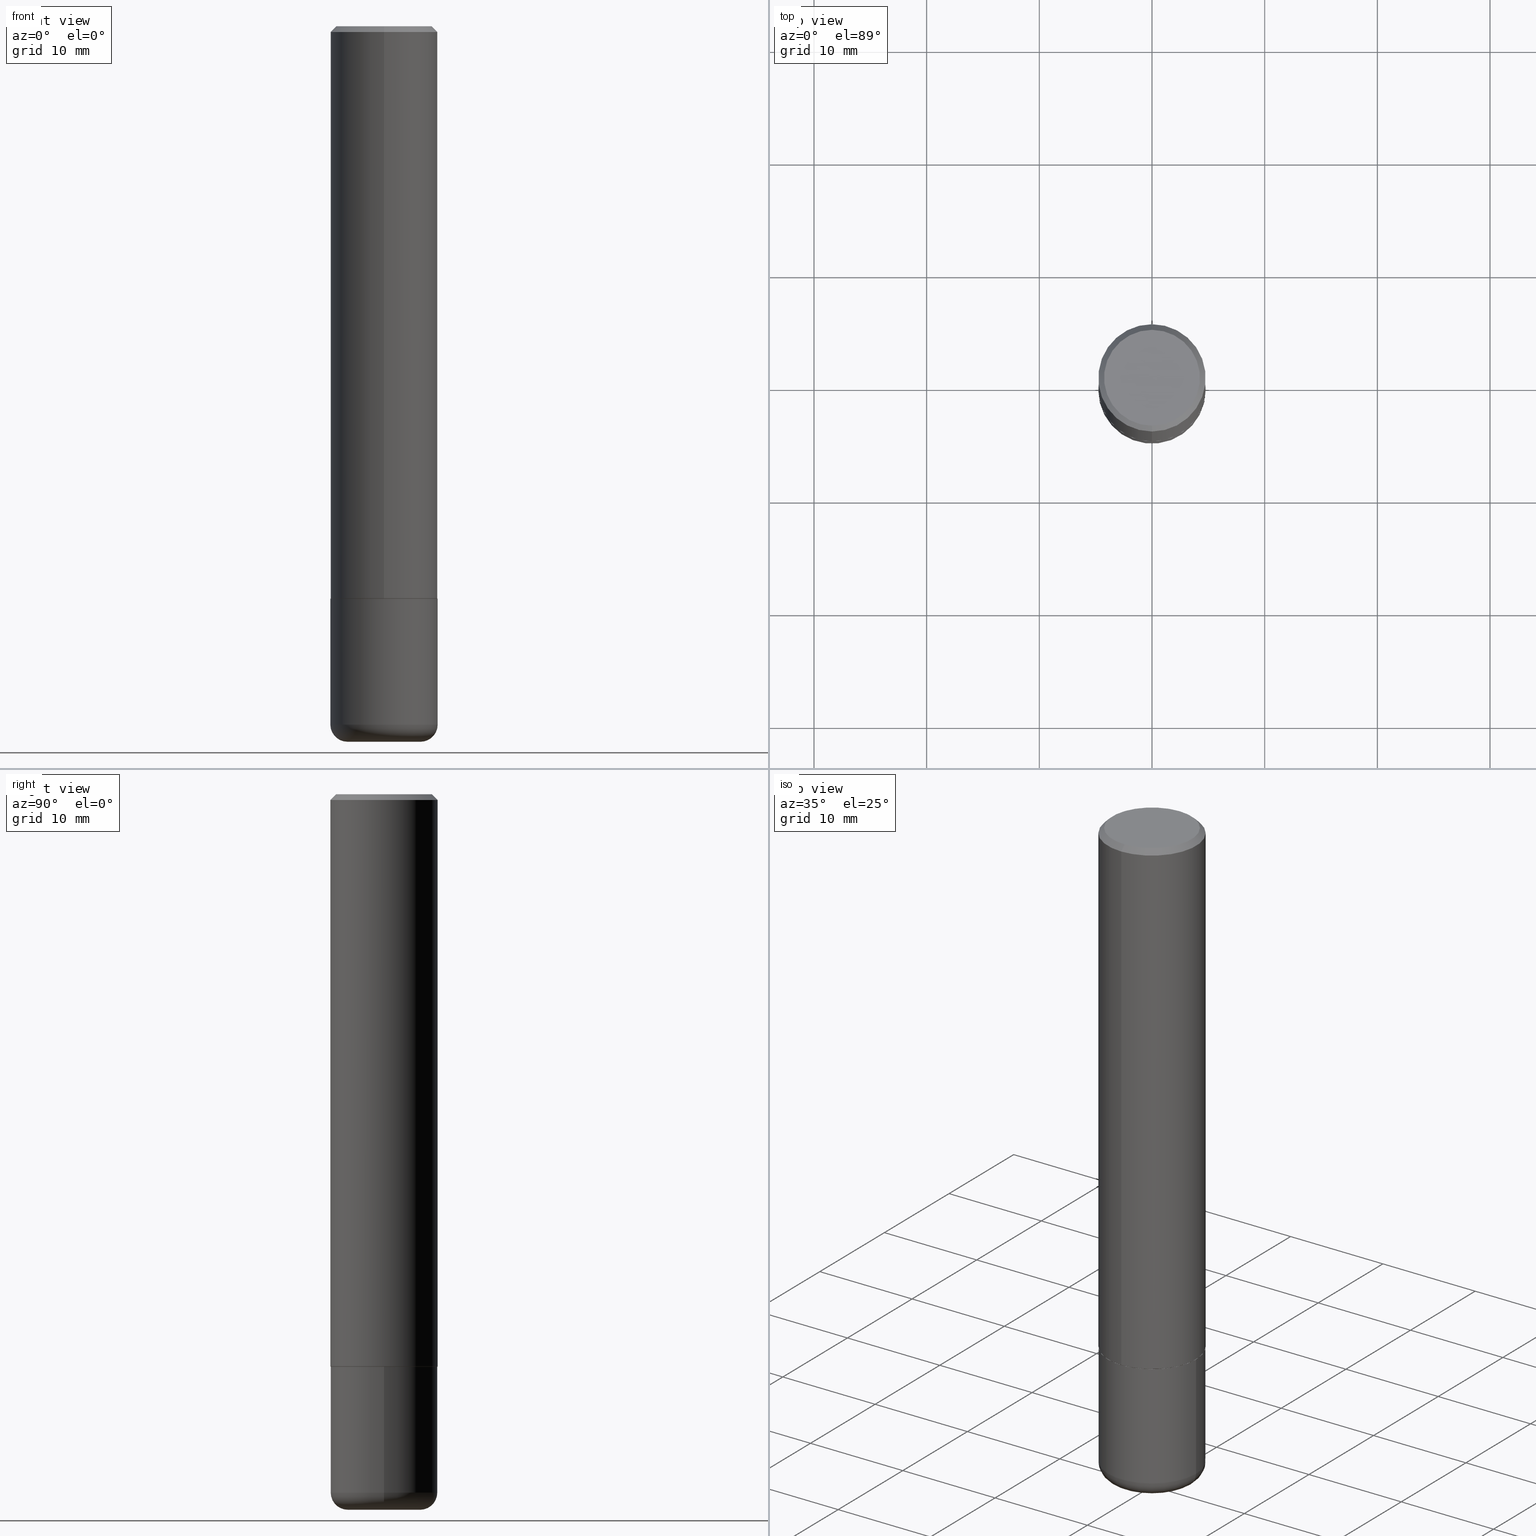
[diagram: canonical four-view strip — front | top / right | iso, engineering-drawing reading convention]
A machine part, canonical four-view strip (front | top / right | iso — engineering-drawing reading convention). The complete STEP part file that produces these views, byte-faithful:
ISO-10303-21;
HEADER;
FILE_DESCRIPTION (( 'STEP AP203' ),
    '1' );
FILE_NAME ('38817.STEP',
    '2024-03-03T14:39:01',
    ( '' ),
    ( '' ),
    'SwSTEP 2.0',
    'SolidWorks 2023',
    '' );
FILE_SCHEMA (( 'CONFIG_CONTROL_DESIGN' ));
ENDSEC;

DATA;
#1 = CIRCLE ( 'NONE', #182, 0.1875000000000000278 ) ;
#2 = ORIENTED_EDGE ( 'NONE', *, *, #365, .F. ) ;
#3 = FACE_OUTER_BOUND ( 'NONE', #306, .T. ) ;
#4 = EDGE_CURVE ( 'NONE', #218, #31, #223, .T. ) ;
#5 = EDGE_LOOP ( 'NONE', ( #361, #397, #313, #228 ) ) ;
#6 = FACE_OUTER_BOUND ( 'NONE', #5, .T. ) ;
#7 = FACE_OUTER_BOUND ( 'NONE', #58, .T. ) ;
#8 = COORDINATED_UNIVERSAL_TIME_OFFSET ( 5, 0, .BEHIND. ) ;
#9 = VECTOR ( 'NONE', #26, 39.37007874015748143 ) ;
#10 = CONICAL_SURFACE ( 'NONE', #213, 0.1875000000000000555, 0.7853981633974473908 ) ;
#11 = FACE_OUTER_BOUND ( 'NONE', #252, .T. ) ;
#12 = ORIENTED_EDGE ( 'NONE', *, *, #51, .F. ) ;
#13 = CARTESIAN_POINT ( 'NONE',  ( 0.1275000000000000022, -9.409542208182273423E-15, -2.440000000000000391 ) ) ;
#14 = ORIENTED_EDGE ( 'NONE', *, *, #365, .T. ) ;
#15 = EDGE_CURVE ( 'NONE', #218, #46, #188, .T. ) ;
#16 = CARTESIAN_POINT ( 'NONE',  ( 0.1875000000000000555, -1.309305502066175205E-15, 9.142831454617382414E-30 ) ) ;
#17 = DIRECTION ( 'NONE',  ( -6.982962677686265922E-15, -1.000000000000000000, 3.491920538655792507E-15 ) ) ;
#18 = DIRECTION ( 'NONE',  ( 1.000000000000000000, -6.982962677686260400E-15, 0.000000000000000000 ) ) ;
#19 = DIRECTION ( 'NONE',  ( -2.445468806185136597E-29, 3.491481338843145583E-15, 1.000000000000000000 ) ) ;
#20 = CC_DESIGN_PERSON_AND_ORGANIZATION_ASSIGNMENT ( #234, #272, ( #385 ) ) ;
#21 = ORIENTED_EDGE ( 'NONE', *, *, #149, .F. ) ;
#22 = CARTESIAN_POINT ( 'NONE',  ( 5.966943887091733341E-29, -8.519214466777275048E-15, -2.440000000000000391 ) ) ;
#23 = PRODUCT ( '38817', '38817', '', ( #351 ) ) ;
#24 = LOCAL_TIME ( 9, 39, 1.000000000000000000, #143 ) ;
#25 = CARTESIAN_POINT ( 'NONE',  ( 4.890324229190321149E-29, -6.983841077311584226E-15, -1.999999999999999778 ) ) ;
#26 = DIRECTION ( 'NONE',  ( -2.445468806185136877E-29, 3.491481338843145188E-15, 1.000000000000000000 ) ) ;
#27 = VERTEX_POINT ( 'NONE', #297 ) ;
#28 = CONICAL_SURFACE ( 'NONE', #279, 0.1864999999999999714, 0.7853981633977044075 ) ;
#29 = VERTEX_POINT ( 'NONE', #230 ) ;
#30 = DIRECTION ( 'NONE',  ( -6.982962677686265922E-15, -1.000000000000000000, 3.483106191921934371E-15 ) ) ;
#31 = VERTEX_POINT ( 'NONE', #169 ) ;
#32 = ADVANCED_FACE ( 'NONE', ( #116 ), #201, .T. ) ;
#33 = AXIS2_PLACEMENT_3D ( 'NONE', #13, #106, #124 ) ;
#34 = DIRECTION ( 'NONE',  ( -2.445162114595160294E-29, 3.491920538655792902E-15, 1.000000000000000000 ) ) ;
#35 =( NAMED_UNIT ( * ) SI_UNIT ( $, .STERADIAN. ) SOLID_ANGLE_UNIT ( ) );
#36 = EDGE_LOOP ( 'NONE', ( #312, #87 ) ) ;
#37 = ADVANCED_FACE ( 'NONE', ( #237 ), #103, .T. ) ;
#38 = ORIENTED_EDGE ( 'NONE', *, *, #340, .T. ) ;
#39 = AXIS2_PLACEMENT_3D ( 'NONE', #227, #128, #74 ) ;
#40 = DIRECTION ( 'NONE',  ( 6.982962677686265922E-15, 1.000000000000000000, -3.483106191921934371E-15 ) ) ;
#41 = CARTESIAN_POINT ( 'NONE',  ( 6.113672015462842613E-29, -8.728703347107866520E-15, -2.500000000000000444 ) ) ;
#42 = CARTESIAN_POINT ( 'NONE',  ( -1.367266251544870937E-29, -1.944183273402655128E-14, -2.500000000000000000 ) ) ;
#43 = VERTEX_POINT ( 'NONE', #175 ) ;
#44 = DIRECTION ( 'NONE',  ( 1.000000000000000000, -6.982962677686263555E-15, 4.883557194083111780E-29 ) ) ;
#45 = DIRECTION ( 'NONE',  ( -2.445468806185136597E-29, 3.491481338843145583E-15, 1.000000000000000000 ) ) ;
#46 = VERTEX_POINT ( 'NONE', #108 ) ;
#47 = LINE ( 'NONE', #16, #9 ) ;
#48 = CARTESIAN_POINT ( 'NONE',  ( 4.887879067075725967E-29, -6.980349156772927879E-15, -1.998999999999999888 ) ) ;
#49 = EDGE_CURVE ( 'NONE', #31, #190, #243, .T. ) ;
#50 = DIRECTION ( 'NONE',  ( 6.982962677686265922E-15, 1.000000000000000000, -3.483106191921934371E-15 ) ) ;
#51 = EDGE_CURVE ( 'NONE', #221, #43, #342, .T. ) ;
#52 = DIRECTION ( 'NONE',  ( -2.445468806185136597E-29, 3.491481338843145583E-15, 1.000000000000000000 ) ) ;
#53 = AXIS2_PLACEMENT_3D ( 'NONE', #72, #101, #133 ) ;
#54 = AXIS2_PLACEMENT_3D ( 'NONE', #302, #270, #241 ) ;
#55 = CARTESIAN_POINT ( 'NONE',  ( -1.286343374582161774E-15, -0.1875000000000001110, -0.01999999999999938979 ) ) ;
#56 = AXIS2_PLACEMENT_3D ( 'NONE', #374, #369, #197 ) ;
#57 = ADVANCED_FACE ( 'NONE', ( #137 ), #266, .T. ) ;
#58 = EDGE_LOOP ( 'NONE', ( #282, #271, #262, #2 ) ) ;
#59 = CIRCLE ( 'NONE', #222, 0.1875000000000000555 ) ;
#60 = ORIENTED_EDGE ( 'NONE', *, *, #408, .T. ) ;
#61 = ORIENTED_EDGE ( 'NONE', *, *, #395, .T. ) ;
#62 = LOCAL_TIME ( 9, 39, 1.000000000000000000, #8 ) ;
#63 = CARTESIAN_POINT ( 'NONE',  ( 4.890324229190321149E-29, -6.983841077311584226E-15, -1.999999999999999778 ) ) ;
#64 = CLOSED_SHELL ( 'NONE', ( #162, #256, #318, #37, #32, #324, #211, #85 ) ) ;
#65 = VERTEX_POINT ( 'NONE', #77 ) ;
#66 = APPLICATION_PROTOCOL_DEFINITION ( 'international standard', 'config_control_design', 1994, #142 ) ;
#67 = ORIENTED_EDGE ( 'NONE', *, *, #305, .F. ) ;
#68 = CARTESIAN_POINT ( 'NONE',  ( 4.890937612370273194E-29, -6.982962677686291165E-15, -2.000000000000000000 ) ) ;
#69 = EDGE_CURVE ( 'NONE', #31, #29, #206, .T. ) ;
#70 =( GEOMETRIC_REPRESENTATION_CONTEXT ( 3 ) GLOBAL_UNCERTAINTY_ASSIGNED_CONTEXT ( ( #389 ) ) GLOBAL_UNIT_ASSIGNED_CONTEXT ( ( #319, #100, #35 ) ) REPRESENTATION_CONTEXT ( 'NONE', 'WORKASPACE' ) );
#71 = FACE_OUTER_BOUND ( 'NONE', #240, .T. ) ;
#72 = CARTESIAN_POINT ( 'NONE',  ( 6.113672015462842613E-29, -8.728703347107866520E-15, -2.500000000000000444 ) ) ;
#73 = DIRECTION ( 'NONE',  ( 1.000000000000000000, -6.982962677686263555E-15, 4.883557194083111780E-29 ) ) ;
#74 = DIRECTION ( 'NONE',  ( 1.000000000000000000, -6.982962677686266711E-15, 0.000000000000000000 ) ) ;
#75 = ORIENTED_EDGE ( 'NONE', *, *, #202, .F. ) ;
#76 = EDGE_CURVE ( 'NONE', #46, #218, #134, .T. ) ;
#77 = CARTESIAN_POINT ( 'NONE',  ( 0.1875000000000000278, -8.292268179752466962E-15, -2.000000000000000000 ) ) ;
#78 = AXIS2_PLACEMENT_3D ( 'NONE', #63, #165, #159 ) ;
#79 = CARTESIAN_POINT ( 'NONE',  ( 1.328714915871436845E-15, 0.1864999999999929770, -2.000000000000000444 ) ) ;
#80 = AXIS2_PLACEMENT_3D ( 'NONE', #125, #102, #73 ) ;
#81 = DIRECTION ( 'NONE',  ( -4.937700262165812586E-15, -0.7071067811867262076, 0.7071067811863689379 ) ) ;
#82 = SHAPE_DEFINITION_REPRESENTATION ( #370, #341 ) ;
#83 = VERTEX_POINT ( 'NONE', #79 ) ;
#84 = AXIS2_PLACEMENT_3D ( 'NONE', #184, #314, #30 ) ;
#85 = ADVANCED_FACE ( 'NONE', ( #416 ), #293, .F. ) ;
#86 = MANIFOLD_SOLID_BREP ( 'Body-Move/Copy2[2]', #64 ) ;
#87 = ORIENTED_EDGE ( 'NONE', *, *, #15, .F. ) ;
#88 = APPROVAL_PERSON_ORGANIZATION ( #401, #177, #350 ) ;
#89 = ORIENTED_EDGE ( 'NONE', *, *, #76, .T. ) ;
#90 = LINE ( 'NONE', #168, #394 ) ;
#91 = PERSON ( 'UNSPECIFIED', 'UNSPECIFIED', 'UNSPECIFIED', ('UNSPECIFIED'), ('UNSPECIFIED'), ('UNSPECIFIED') ) ;
#92 = AXIS2_PLACEMENT_3D ( 'NONE', #224, #286, #403 ) ;
#93 = CALENDAR_DATE ( 2024, 3, 3 ) ;
#94 = FACE_OUTER_BOUND ( 'NONE', #387, .T. ) ;
#95 = EDGE_LOOP ( 'NONE', ( #399, #400 ) ) ;
#96 = DIRECTION ( 'NONE',  ( 2.438088387897960049E-29, -3.491481338843145188E-15, -1.000000000000000000 ) ) ;
#98 = ORIENTED_EDGE ( 'NONE', *, *, #283, .F. ) ;
#97 = CC_DESIGN_DATE_AND_TIME_ASSIGNMENT ( #296, #269, ( #385 ) ) ;
#99 = EDGE_CURVE ( 'NONE', #43, #144, #245, .T. ) ;
#100 =( NAMED_UNIT ( * ) PLANE_ANGLE_UNIT ( ) SI_UNIT ( $, .RADIAN. ) );
#101 = DIRECTION ( 'NONE',  ( -2.445468806185136597E-29, 3.491481338843145583E-15, 1.000000000000000000 ) ) ;
#102 = DIRECTION ( 'NONE',  ( -2.445468806185136597E-29, 3.491481338843145583E-15, 1.000000000000000000 ) ) ;
#103 = CONICAL_SURFACE ( 'NONE', #336, 0.1875000000000000555, 0.7853981633974473908 ) ;
#104 = EDGE_CURVE ( 'NONE', #27, #83, #343, .T. ) ;
#105 = LOCAL_TIME ( 9, 39, 1.000000000000000000, #285 ) ;
#106 = DIRECTION ( 'NONE',  ( -6.982962677686266711E-15, -1.000000000000000000, 3.491481338843145583E-15 ) ) ;
#107 = AXIS2_PLACEMENT_3D ( 'NONE', #304, #117, #119 ) ;
#108 = CARTESIAN_POINT ( 'NONE',  ( 0.1275000000000000022, -9.619031088512866473E-15, -2.500000000000000444 ) ) ;
#109 = CARTESIAN_POINT ( 'NONE',  ( -0.1275000000000000022, -7.613272478683147690E-15, -2.440000000000000391 ) ) ;
#110 = CALENDAR_DATE ( 2024, 3, 3 ) ;
#111 = EDGE_CURVE ( 'NONE', #380, #157, #310, .T. ) ;
#112 = EDGE_CURVE ( 'NONE', #380, #144, #171, .T. ) ;
#113 = LINE ( 'NONE', #368, #121 ) ;
#114 = ORIENTED_EDGE ( 'NONE', *, *, #248, .T. ) ;
#115 = FACE_OUTER_BOUND ( 'NONE', #323, .T. ) ;
#116 = FACE_OUTER_BOUND ( 'NONE', #194, .T. ) ;
#117 = DIRECTION ( 'NONE',  ( 2.445162114595160014E-29, -3.491920538655792902E-15, -1.000000000000000000 ) ) ;
#118 = LOCAL_TIME ( 9, 39, 1.000000000000000000, #127 ) ;
#119 = DIRECTION ( 'NONE',  ( 6.982962677686265922E-15, 1.000000000000000000, -3.491920538655792902E-15 ) ) ;
#120 = ORIENTED_EDGE ( 'NONE', *, *, #112, .F. ) ;
#121 = VECTOR ( 'NONE', #81, 39.37007874015748143 ) ;
#122 = FACE_OUTER_BOUND ( 'NONE', #183, .T. ) ;
#123 = CARTESIAN_POINT ( 'NONE',  ( 0.000000000000000000, 0.000000000000000000, 0.000000000000000000 ) ) ;
#124 = DIRECTION ( 'NONE',  ( 1.000000000000000000, -6.982962677686271444E-15, 0.000000000000000000 ) ) ;
#125 = CARTESIAN_POINT ( 'NONE',  ( 5.966943887091733341E-29, -8.519214466777275048E-15, -2.440000000000000391 ) ) ;
#126 = AXIS2_PLACEMENT_3D ( 'NONE', #354, #332, #200 ) ;
#127 = COORDINATED_UNIVERSAL_TIME_OFFSET ( 5, 0, .BEHIND. ) ;
#128 = DIRECTION ( 'NONE',  ( -2.445468806185136597E-29, 3.491481338843145583E-15, 1.000000000000000000 ) ) ;
#129 = APPROVAL_DATE_TIME ( #199, #392 ) ;
#130 = VERTEX_POINT ( 'NONE', #417 ) ;
#131 = APPROVAL_STATUS ( 'not_yet_approved' ) ;
#132 = CARTESIAN_POINT ( 'NONE',  ( 4.890324229190331589E-31, -6.983841077311600052E-17, -0.02000000000000004205 ) ) ;
#133 = DIRECTION ( 'NONE',  ( 1.000000000000000000, -6.982962677686267499E-15, 0.000000000000000000 ) ) ;
#134 = CIRCLE ( 'NONE', #376, 0.1275000000000000022 ) ;
#135 = DATE_AND_TIME ( #236, #24 ) ;
#136 = CIRCLE ( 'NONE', #208, 0.1875000000000002776 ) ;
#137 = FACE_OUTER_BOUND ( 'NONE', #339, .T. ) ;
#138 = DIRECTION ( 'NONE',  ( -4.851104656540959542E-15, -0.7071067811865493491, -0.7071067811865457964 ) ) ;
#139 = COORDINATED_UNIVERSAL_TIME_OFFSET ( 5, 0, .BEHIND. ) ;
#140 = CARTESIAN_POINT ( 'NONE',  ( -5.236590585173793708E-46, 7.478341868521650963E-32, 2.141612841912039052E-17 ) ) ;
#141 = DIRECTION ( 'NONE',  ( 1.000000000000000000, -6.982962677686267499E-15, 0.000000000000000000 ) ) ;
#142 = APPLICATION_CONTEXT ( 'configuration controlled 3d designs of mechanical parts and assemblies' ) ;
#143 = COORDINATED_UNIVERSAL_TIME_OFFSET ( 5, 0, .BEHIND. ) ;
#144 = VERTEX_POINT ( 'NONE', #210 ) ;
#145 = VECTOR ( 'NONE', #353, 39.37007874015748143 ) ;
#146 = CC_DESIGN_SECURITY_CLASSIFICATION ( #385, ( #164 ) ) ;
#147 = APPROVAL_ROLE ( '' ) ;
#148 = ORIENTED_EDGE ( 'NONE', *, *, #104, .F. ) ;
#149 = EDGE_CURVE ( 'NONE', #83, #27, #181, .T. ) ;
#150 = CARTESIAN_POINT ( 'NONE',  ( 1.239475875289312696E-15, 0.1675000000000000100, -5.634805618057250307E-16 ) ) ;
#151 = CC_DESIGN_PERSON_AND_ORGANIZATION_ASSIGNMENT ( #205, #170, ( #164 ) ) ;
#152 = ORIENTED_EDGE ( 'NONE', *, *, #111, .F. ) ;
#153 = ORIENTED_EDGE ( 'NONE', *, *, #395, .F. ) ;
#154 = AXIS2_PLACEMENT_3D ( 'NONE', #410, #412, #366 ) ;
#155 = AXIS2_PLACEMENT_3D ( 'NONE', #174, #338, #398 ) ;
#156 = AXIS2_PLACEMENT_3D ( 'NONE', #274, #364, #334 ) ;
#157 = VERTEX_POINT ( 'NONE', #150 ) ;
#158 = DIMENSIONAL_EXPONENTS ( 1.000000000000000000, 0.000000000000000000, 0.000000000000000000, 0.000000000000000000, 0.000000000000000000, 0.000000000000000000, 0.000000000000000000 ) ;
#159 = DIRECTION ( 'NONE',  ( -6.982962677686265922E-15, -1.000000000000000000, 2.929595703661408850E-15 ) ) ;
#160 = PERSON_AND_ORGANIZATION ( #91, #275 ) ;
#161 = DIRECTION ( 'NONE',  ( 2.445162114595160575E-29, -3.491920538655792507E-15, -1.000000000000000000 ) ) ;
#162 = ADVANCED_FACE ( 'NONE', ( #3 ), #28, .T. ) ;
#163 = DIRECTION ( 'NONE',  ( 0.000000000000000000, 0.000000000000000000, 1.000000000000000000 ) ) ;
#164 = PRODUCT_DEFINITION_FORMATION_WITH_SPECIFIED_SOURCE ( 'ANY', '', #23, .NOT_KNOWN. ) ;
#165 = DIRECTION ( 'NONE',  ( -2.445162114595160575E-29, 3.491920538655792507E-15, 1.000000000000000000 ) ) ;
#166 = DIRECTION ( 'NONE',  ( 1.000000000000000000, -6.982962677686266711E-15, 0.000000000000000000 ) ) ;
#167 = ORIENTED_EDGE ( 'NONE', *, *, #49, .T. ) ;
#168 = CARTESIAN_POINT ( 'NONE',  ( 1.309305502066175797E-15, 0.1874999999999999722, -0.02000000000000069431 ) ) ;
#169 = CARTESIAN_POINT ( 'NONE',  ( -0.1875000000000001388, -7.186946837227087200E-15, -2.440000000000000391 ) ) ;
#170 = PERSON_AND_ORGANIZATION_ROLE ( 'design_supplier' ) ;
#171 = LINE ( 'NONE', #55, #371 ) ;
#172 = TOROIDAL_SURFACE ( 'NONE', #80, 0.1275000000000000022, 0.06000000000000024758 ) ;
#173 = CARTESIAN_POINT ( 'NONE',  ( -0.1875000000000000555, 1.332267629550188243E-15, -9.223003294227950793E-30 ) ) ;
#174 = CARTESIAN_POINT ( 'NONE',  ( 4.890324229190321710E-29, -6.983841077311585015E-15, -2.000000000000000000 ) ) ;
#175 = CARTESIAN_POINT ( 'NONE',  ( -1.309305502066128268E-15, -0.1875000000000072442, -1.998999999999999444 ) ) ;
#176 = DIRECTION ( 'NONE',  ( -2.445468806185136597E-29, 3.491481338843145583E-15, 1.000000000000000000 ) ) ;
#177 = APPROVAL ( #131, 'UNSPECIFIED' ) ;
#178 = EDGE_CURVE ( 'NONE', #130, #144, #317, .T. ) ;
#179 = DIRECTION ( 'NONE',  ( -6.982962677686265922E-15, -1.000000000000000000, 3.491920538655792902E-15 ) ) ;
#180 = CC_DESIGN_APPROVAL ( #277, ( #385 ) ) ;
#181 = CIRCLE ( 'NONE', #362, 0.1864999999999999714 ) ;
#182 = AXIS2_PLACEMENT_3D ( 'NONE', #68, #45, #166 ) ;
#183 = EDGE_LOOP ( 'NONE', ( #89, #284, #75, #98 ) ) ;
#184 = CARTESIAN_POINT ( 'NONE',  ( 4.890324229190331589E-31, -6.983841077311600052E-17, -0.02000000000000004205 ) ) ;
#185 = ORIENTED_EDGE ( 'NONE', *, *, #247, .F. ) ;
#186 = CARTESIAN_POINT ( 'NONE',  ( 0.000000000000000000, 0.000000000000000000, 0.000000000000000000 ) ) ;
#187 = ORIENTED_EDGE ( 'NONE', *, *, #104, .T. ) ;
#188 = CIRCLE ( 'NONE', #53, 0.1275000000000000022 ) ;
#189 = CARTESIAN_POINT ( 'NONE',  ( -0.1275000000000000022, -7.504854098120412392E-15, -2.500000000000000444 ) ) ;
#190 = VERTEX_POINT ( 'NONE', #198 ) ;
#191 = ADVANCED_FACE ( 'NONE', ( #6 ), #172, .T. ) ;
#192 = CALENDAR_DATE ( 2024, 3, 3 ) ;
#193 = DIRECTION ( 'NONE',  ( -2.445162114595160294E-29, 3.491920538655792902E-15, 1.000000000000000000 ) ) ;
#194 = EDGE_LOOP ( 'NONE', ( #185, #346, #249, #246 ) ) ;
#195 = ADVANCED_FACE ( 'NONE', ( #122 ), #298, .T. ) ;
#196 = LENGTH_MEASURE_WITH_UNIT ( LENGTH_MEASURE( 0.02539999999999999897 ), #215 );
#197 = DIRECTION ( 'NONE',  ( 1.000000000000000000, -6.982962677686260400E-15, 0.000000000000000000 ) ) ;
#198 = CARTESIAN_POINT ( 'NONE',  ( 0.1875000000000001388, -9.828519968843450056E-15, -2.440000000000000391 ) ) ;
#199 = DATE_AND_TIME ( #93, #105 ) ;
#200 = DIRECTION ( 'NONE',  ( -6.982962677686265922E-15, -1.000000000000000000, 2.929595703661408850E-15 ) ) ;
#201 = CYLINDRICAL_SURFACE ( 'NONE', #407, 0.1875000000000001943 ) ;
#202 = EDGE_CURVE ( 'NONE', #190, #31, #328, .T. ) ;
#203 = LINE ( 'NONE', #254, #384 ) ;
#204 = ORIENTED_EDGE ( 'NONE', *, *, #99, .F. ) ;
#205 = PERSON_AND_ORGANIZATION ( #91, #275 ) ;
#206 = LINE ( 'NONE', #173, #316 ) ;
#207 = PLANE ( 'NONE',  #155 ) ;
#208 = AXIS2_PLACEMENT_3D ( 'NONE', #288, #357, #360 ) ;
#209 = CARTESIAN_POINT ( 'NONE',  ( 4.890324229190331589E-31, -6.983841077311600052E-17, -0.02000000000000004205 ) ) ;
#210 = CARTESIAN_POINT ( 'NONE',  ( -1.286343374582161774E-15, -0.1875000000000001110, -0.01999999999999938979 ) ) ;
#211 = ADVANCED_FACE ( 'NONE', ( #267 ), #207, .F. ) ;
#212 = ORIENTED_EDGE ( 'NONE', *, *, #248, .F. ) ;
#213 = AXIS2_PLACEMENT_3D ( 'NONE', #132, #161, #40 ) ;
#214 = AXIS2_PLACEMENT_3D ( 'NONE', #109, #295, #273 ) ;
#215 =( LENGTH_UNIT ( ) NAMED_UNIT ( * ) SI_UNIT ( $, .METRE. ) );
#216 = CIRCLE ( 'NONE', #33, 0.06000000000000024758 ) ;
#217 = DIRECTION ( 'NONE',  ( -2.445162114595160575E-29, 3.491920538655792507E-15, 1.000000000000000000 ) ) ;
#218 = VERTEX_POINT ( 'NONE', #189 ) ;
#219 = ORIENTED_EDGE ( 'NONE', *, *, #69, .F. ) ;
#220 = PERSON_AND_ORGANIZATION ( #91, #275 ) ;
#221 = VERTEX_POINT ( 'NONE', #294 ) ;
#222 = AXIS2_PLACEMENT_3D ( 'NONE', #209, #418, #386 ) ;
#223 = CIRCLE ( 'NONE', #214, 0.06000000000000024758 ) ;
#224 = CARTESIAN_POINT ( 'NONE',  ( 0.000000000000000000, 0.000000000000000000, 0.000000000000000000 ) ) ;
#225 = ORIENTED_EDGE ( 'NONE', *, *, #335, .T. ) ;
#226 = DATE_TIME_ROLE ( 'creation_date' ) ;
#227 = CARTESIAN_POINT ( 'NONE',  ( 4.890937612370273194E-29, -6.982962677686291165E-15, -2.000000000000000000 ) ) ;
#228 = ORIENTED_EDGE ( 'NONE', *, *, #49, .F. ) ;
#229 = PERSON_AND_ORGANIZATION ( #91, #275 ) ;
#230 = CARTESIAN_POINT ( 'NONE',  ( -0.1875000000000000278, -6.418820942681594864E-15, -2.000000000000000000 ) ) ;
#231 = CIRCLE ( 'NONE', #39, 0.1875000000000000278 ) ;
#232 = DIRECTION ( 'NONE',  ( -1.000000000000000000, 6.982962677686265922E-15, -4.876176775795935793E-29 ) ) ;
#233 = DIRECTION ( 'NONE',  ( -2.445162114595160575E-29, 3.491920538655792507E-15, 1.000000000000000000 ) ) ;
#234 = PERSON_AND_ORGANIZATION ( #91, #275 ) ;
#235 = ORIENTED_EDGE ( 'NONE', *, *, #149, .T. ) ;
#236 = CALENDAR_DATE ( 2024, 3, 3 ) ;
#237 = FACE_OUTER_BOUND ( 'NONE', #331, .T. ) ;
#238 = AXIS2_PLACEMENT_3D ( 'NONE', #22, #176, #44 ) ;
#239 = PLANE ( 'NONE',  #54 ) ;
#240 = EDGE_LOOP ( 'NONE', ( #152, #315, #60, #67 ) ) ;
#241 = DIRECTION ( 'NONE',  ( -1.000000000000000000, 6.982962677686265922E-15, -4.876176775795935793E-29 ) ) ;
#242 = DIRECTION ( 'NONE',  ( -2.445162114595160575E-29, 3.491920538655792507E-15, 1.000000000000000000 ) ) ;
#243 = CIRCLE ( 'NONE', #56, 0.1875000000000000555 ) ;
#244 = CC_DESIGN_APPROVAL ( #392, ( #414 ) ) ;
#245 = LINE ( 'NONE', #378, #257 ) ;
#246 = ORIENTED_EDGE ( 'NONE', *, *, #178, .F. ) ;
#247 = EDGE_CURVE ( 'NONE', #221, #130, #203, .T. ) ;
#248 = EDGE_CURVE ( 'NONE', #83, #221, #330, .T. ) ;
#249 = ORIENTED_EDGE ( 'NONE', *, *, #99, .T. ) ;
#250 = AXIS2_PLACEMENT_3D ( 'NONE', #123, #52, #276 ) ;
#251 = ORIENTED_EDGE ( 'NONE', *, *, #308, .F. ) ;
#252 = EDGE_LOOP ( 'NONE', ( #212, #235, #61, #12 ) ) ;
#253 = PERSON_AND_ORGANIZATION_ROLE ( 'design_owner' ) ;
#254 = CARTESIAN_POINT ( 'NONE',  ( 1.332267629550188835E-15, 0.1875000000000001943, -6.547351009979617607E-16 ) ) ;
#255 = APPROVAL_ROLE ( '' ) ;
#256 = ADVANCED_FACE ( 'NONE', ( #94 ), #320, .T. ) ;
#257 = VECTOR ( 'NONE', #34, 39.37007874015748143 ) ;
#258 = CIRCLE ( 'NONE', #290, 0.1675000000000000100 ) ;
#259 = FACE_OUTER_BOUND ( 'NONE', #36, .T. ) ;
#260 = ORIENTED_EDGE ( 'NONE', *, *, #308, .T. ) ;
#261 = CALENDAR_DATE ( 2024, 3, 3 ) ;
#262 = ORIENTED_EDGE ( 'NONE', *, *, #335, .F. ) ;
#263 = PERSON_AND_ORGANIZATION_ROLE ( 'creator' ) ;
#264 = CARTESIAN_POINT ( 'NONE',  ( 0.000000000000000000, 0.000000000000000000, 0.000000000000000000 ) ) ;
#265 = CLOSED_SHELL ( 'NONE', ( #345, #195, #391, #57, #191, #337 ) ) ;
#266 = CYLINDRICAL_SURFACE ( 'NONE', #154, 0.1875000000000000555 ) ;
#267 = FACE_OUTER_BOUND ( 'NONE', #375, .T. ) ;
#268 = CC_DESIGN_PERSON_AND_ORGANIZATION_ASSIGNMENT ( #390, #263, ( #414 ) ) ;
#269 = DATE_TIME_ROLE ( 'classification_date' ) ;
#270 = DIRECTION ( 'NONE',  ( 2.438088387897960049E-29, -3.491481338843145188E-15, -1.000000000000000000 ) ) ;
#271 = ORIENTED_EDGE ( 'NONE', *, *, #69, .T. ) ;
#272 = PERSON_AND_ORGANIZATION_ROLE ( 'classification_officer' ) ;
#273 = DIRECTION ( 'NONE',  ( -1.000000000000000000, 7.105427357600993970E-15, 0.000000000000000000 ) ) ;
#274 = CARTESIAN_POINT ( 'NONE',  ( -5.236590585173793708E-46, 7.478341868521650963E-32, 2.141612841912039052E-17 ) ) ;
#275 = ORGANIZATION ( 'UNSPECIFIED', 'UNSPECIFIED', '' ) ;
#276 = DIRECTION ( 'NONE',  ( 1.000000000000000000, -6.982962677686265922E-15, 4.876176775795935793E-29 ) ) ;
#277 = APPROVAL ( #411, 'UNSPECIFIED' ) ;
#278 = ORIENTED_EDGE ( 'NONE', *, *, #340, .F. ) ;
#279 = AXIS2_PLACEMENT_3D ( 'NONE', #383, #217, #349 ) ;
#280 = LOCAL_TIME ( 9, 39, 1.000000000000000000, #139 ) ;
#281 = ORIENTED_EDGE ( 'NONE', *, *, #379, .F. ) ;
#282 = ORIENTED_EDGE ( 'NONE', *, *, #202, .T. ) ;
#283 = EDGE_CURVE ( 'NONE', #46, #190, #216, .T. ) ;
#284 = ORIENTED_EDGE ( 'NONE', *, *, #4, .T. ) ;
#285 = COORDINATED_UNIVERSAL_TIME_OFFSET ( 5, 0, .BEHIND. ) ;
#286 = DIRECTION ( 'NONE',  ( -2.445162114595160575E-29, 3.491920538655792507E-15, 1.000000000000000000 ) ) ;
#287 = APPROVAL_STATUS ( 'not_yet_approved' ) ;
#288 = CARTESIAN_POINT ( 'NONE',  ( 4.887879067075725967E-29, -6.980349156772927879E-15, -1.998999999999999888 ) ) ;
#289 = ORIENTED_EDGE ( 'NONE', *, *, #247, .T. ) ;
#290 = AXIS2_PLACEMENT_3D ( 'NONE', #140, #415, #179 ) ;
#291 = PRODUCT_RELATED_PRODUCT_CATEGORY ( 'detail', '', ( #23 ) ) ;
#292 = CYLINDRICAL_SURFACE ( 'NONE', #250, 0.1875000000000000555 ) ;
#293 = PLANE ( 'NONE',  #107 ) ;
#294 = CARTESIAN_POINT ( 'NONE',  ( 1.332267629550213684E-15, 0.1874999999999933109, -1.999000000000000554 ) ) ;
#295 = DIRECTION ( 'NONE',  ( 7.105427357601001859E-15, 1.000000000000000000, -3.491481338843145583E-15 ) ) ;
#296 = DATE_AND_TIME ( #110, #280 ) ;
#297 = CARTESIAN_POINT ( 'NONE',  ( -1.302322539388439493E-15, -0.1865000000000069658, -1.999999999999999112 ) ) ;
#298 = TOROIDAL_SURFACE ( 'NONE', #238, 0.1275000000000000022, 0.06000000000000024758 ) ;
#299 = CARTESIAN_POINT ( 'NONE',  ( 4.890324229190331589E-31, -6.983841077311600052E-17, -0.02000000000000004205 ) ) ;
#300 = DIRECTION ( 'NONE',  ( -2.445468806185136877E-29, 3.491481338843145188E-15, 1.000000000000000000 ) ) ;
#301 = CC_DESIGN_PERSON_AND_ORGANIZATION_ASSIGNMENT ( #229, #329, ( #164 ) ) ;
#302 = CARTESIAN_POINT ( 'NONE',  ( 4.890937612370273194E-29, -6.982962677686291165E-15, -2.000000000000000000 ) ) ;
#303 = APPROVAL_PERSON_ORGANIZATION ( #160, #392, #255 ) ;
#304 = CARTESIAN_POINT ( 'NONE',  ( 1.169646248512449595E-15, 0.1675000000000000100, -5.741886260152851058E-16 ) ) ;
#305 = EDGE_CURVE ( 'NONE', #157, #130, #90, .T. ) ;
#306 = EDGE_LOOP ( 'NONE', ( #187, #114, #251, #153 ) ) ;
#307 = CC_DESIGN_DATE_AND_TIME_ASSIGNMENT ( #393, #226, ( #414 ) ) ;
#308 = EDGE_CURVE ( 'NONE', #43, #221, #136, .T. ) ;
#309 = DIRECTION ( 'NONE',  ( -6.982962677686265922E-15, -1.000000000000000000, 2.929595703661408850E-15 ) ) ;
#310 = CIRCLE ( 'NONE', #156, 0.1675000000000000100 ) ;
#311 = CONICAL_SURFACE ( 'NONE', #126, 0.1864999999999999714, 0.7853981633977044075 ) ;
#312 = ORIENTED_EDGE ( 'NONE', *, *, #76, .F. ) ;
#313 = ORIENTED_EDGE ( 'NONE', *, *, #283, .T. ) ;
#314 = DIRECTION ( 'NONE',  ( -2.445162114595160575E-29, 3.491920538655792507E-15, 1.000000000000000000 ) ) ;
#315 = ORIENTED_EDGE ( 'NONE', *, *, #112, .T. ) ;
#316 = VECTOR ( 'NONE', #300, 39.37007874015748143 ) ;
#317 = CIRCLE ( 'NONE', #84, 0.1875000000000000555 ) ;
#318 = ADVANCED_FACE ( 'NONE', ( #71 ), #10, .T. ) ;
#319 =( CONVERSION_BASED_UNIT ( 'INCH', #196 ) LENGTH_UNIT ( ) NAMED_UNIT ( #158 ) );
#320 = CYLINDRICAL_SURFACE ( 'NONE', #92, 0.1875000000000001943 ) ;
#321 = APPLICATION_PROTOCOL_DEFINITION ( 'international standard', 'config_control_design', 1994, #381 ) ;
#322 = DIRECTION ( 'NONE',  ( 4.937700262164543309E-15, 0.7071067811865444641, -0.7071067811865506814 ) ) ;
#323 = EDGE_LOOP ( 'NONE', ( #225, #38 ) ) ;
#324 = ADVANCED_FACE ( 'NONE', ( #11 ), #311, .T. ) ;
#325 = APPROVAL_DATE_TIME ( #356, #177 ) ;
#326 = PLANE ( 'NONE',  #377 ) ;
#327 = DIRECTION ( 'NONE',  ( 2.445162114595160575E-29, -3.491920538655792507E-15, -1.000000000000000000 ) ) ;
#328 = CIRCLE ( 'NONE', #405, 0.1875000000000000555 ) ;
#329 = PERSON_AND_ORGANIZATION_ROLE ( 'creator' ) ;
#330 = LINE ( 'NONE', #396, #145 ) ;
#331 = EDGE_LOOP ( 'NONE', ( #120, #281, #333, #382 ) ) ;
#332 = DIRECTION ( 'NONE',  ( -2.445162114595160575E-29, 3.491920538655792507E-15, 1.000000000000000000 ) ) ;
#333 = ORIENTED_EDGE ( 'NONE', *, *, #305, .T. ) ;
#334 = DIRECTION ( 'NONE',  ( -6.982962677686265922E-15, -1.000000000000000000, 3.491920538655792902E-15 ) ) ;
#335 = EDGE_CURVE ( 'NONE', #65, #29, #231, .T. ) ;
#336 = AXIS2_PLACEMENT_3D ( 'NONE', #299, #327, #50 ) ;
#337 = ADVANCED_FACE ( 'NONE', ( #259 ), #326, .T. ) ;
#338 = DIRECTION ( 'NONE',  ( -2.445162114595160014E-29, 3.491920538655792902E-15, 1.000000000000000000 ) ) ;
#339 = EDGE_LOOP ( 'NONE', ( #219, #167, #14, #278 ) ) ;
#340 = EDGE_CURVE ( 'NONE', #29, #65, #1, .T. ) ;
#341 = ADVANCED_BREP_SHAPE_REPRESENTATION ( '38817', ( #372, #86, #347 ), #70 ) ;
#342 = CIRCLE ( 'NONE', #402, 0.1875000000000002776 ) ;
#343 = CIRCLE ( 'NONE', #78, 0.1864999999999999714 ) ;
#344 = CC_DESIGN_PERSON_AND_ORGANIZATION_ASSIGNMENT ( #220, #253, ( #23 ) ) ;
#345 = ADVANCED_FACE ( 'NONE', ( #7 ), #292, .T. ) ;
#346 = ORIENTED_EDGE ( 'NONE', *, *, #51, .T. ) ;
#347 = AXIS2_PLACEMENT_3D ( 'NONE', #186, #163, #359 ) ;
#348 = APPROVAL_PERSON_ORGANIZATION ( #413, #277, #147 ) ;
#349 = DIRECTION ( 'NONE',  ( -6.982962677686265922E-15, -1.000000000000000000, 2.929595703661408850E-15 ) ) ;
#350 = APPROVAL_ROLE ( '' ) ;
#351 = MECHANICAL_CONTEXT ( 'NONE', #142, 'mechanical' ) ;
#352 = CC_DESIGN_APPROVAL ( #177, ( #164 ) ) ;
#353 = DIRECTION ( 'NONE',  ( 5.024295867789349022E-15, 0.7071067811867310926, 0.7071067811863640529 ) ) ;
#354 = CARTESIAN_POINT ( 'NONE',  ( 4.890324229190321149E-29, -6.983841077311584226E-15, -1.999999999999999778 ) ) ;
#355 = ORIENTED_EDGE ( 'NONE', *, *, #408, .F. ) ;
#356 = DATE_AND_TIME ( #261, #118 ) ;
#357 = DIRECTION ( 'NONE',  ( -2.445162114595160575E-29, 3.491920538655792507E-15, 1.000000000000000000 ) ) ;
#358 = DESIGN_CONTEXT ( 'detailed design', #381, 'design' ) ;
#359 = DIRECTION ( 'NONE',  ( 1.000000000000000000, 0.000000000000000000, 0.000000000000000000 ) ) ;
#360 = DIRECTION ( 'NONE',  ( -6.982962677686266711E-15, -1.000000000000000000, 2.913971193241876428E-15 ) ) ;
#361 = ORIENTED_EDGE ( 'NONE', *, *, #4, .F. ) ;
#362 = AXIS2_PLACEMENT_3D ( 'NONE', #25, #242, #309 ) ;
#363 = DIRECTION ( 'NONE',  ( -6.982962677686266711E-15, -1.000000000000000000, 2.913971193241876428E-15 ) ) ;
#364 = DIRECTION ( 'NONE',  ( -2.445162114595160575E-29, 3.491920538655792507E-15, 1.000000000000000000 ) ) ;
#365 = EDGE_CURVE ( 'NONE', #190, #65, #47, .T. ) ;
#366 = DIRECTION ( 'NONE',  ( 1.000000000000000000, -6.982962677686265922E-15, 4.876176775795935793E-29 ) ) ;
#367 = APPROVAL_DATE_TIME ( #135, #277 ) ;
#368 = CARTESIAN_POINT ( 'NONE',  ( -1.302322539388439493E-15, -0.1865000000000069658, -1.999999999999999112 ) ) ;
#369 = DIRECTION ( 'NONE',  ( -2.445468806185136597E-29, 3.491481338843145583E-15, 1.000000000000000000 ) ) ;
#370 = PRODUCT_DEFINITION_SHAPE ( 'NONE', 'NONE',  #414 ) ;
#371 = VECTOR ( 'NONE', #138, 39.37007874015748143 ) ;
#372 = MANIFOLD_SOLID_BREP ( 'Body-Move/Copy2[1]', #265 ) ;
#373 = CARTESIAN_POINT ( 'NONE',  ( -1.217738394604446837E-15, -0.1675000000000000100, 6.063128186439657255E-16 ) ) ;
#374 = CARTESIAN_POINT ( 'NONE',  ( 5.966943887091733341E-29, -8.519214466777275048E-15, -2.440000000000000391 ) ) ;
#375 = EDGE_LOOP ( 'NONE', ( #148, #21 ) ) ;
#376 = AXIS2_PLACEMENT_3D ( 'NONE', #41, #19, #141 ) ;
#377 = AXIS2_PLACEMENT_3D ( 'NONE', #42, #96, #232 ) ;
#378 = CARTESIAN_POINT ( 'NONE',  ( -1.309305502066176192E-15, -0.1875000000000001943, 6.547351009979617607E-16 ) ) ;
#379 = EDGE_CURVE ( 'NONE', #157, #380, #258, .T. ) ;
#380 = VERTEX_POINT ( 'NONE', #373 ) ;
#381 = APPLICATION_CONTEXT ( 'configuration controlled 3d designs of mechanical parts and assemblies' ) ;
#382 = ORIENTED_EDGE ( 'NONE', *, *, #178, .T. ) ;
#383 = CARTESIAN_POINT ( 'NONE',  ( 4.890324229190321149E-29, -6.983841077311584226E-15, -1.999999999999999778 ) ) ;
#384 = VECTOR ( 'NONE', #193, 39.37007874015748143 ) ;
#385 = SECURITY_CLASSIFICATION ( '', '', #409 ) ;
#386 = DIRECTION ( 'NONE',  ( -6.982962677686265922E-15, -1.000000000000000000, 3.483106191921934371E-15 ) ) ;
#387 = EDGE_LOOP ( 'NONE', ( #260, #289, #355, #204 ) ) ;
#388 = CARTESIAN_POINT ( 'NONE',  ( 5.966943887091733341E-29, -8.519214466777275048E-15, -2.440000000000000391 ) ) ;
#389 = UNCERTAINTY_MEASURE_WITH_UNIT (LENGTH_MEASURE( 1.000000000000000082E-05 ), #319, 'distance_accuracy_value', 'NONE');
#390 = PERSON_AND_ORGANIZATION ( #91, #275 ) ;
#391 = ADVANCED_FACE ( 'NONE', ( #115 ), #239, .F. ) ;
#392 = APPROVAL ( #287, 'UNSPECIFIED' ) ;
#393 = DATE_AND_TIME ( #192, #62 ) ;
#394 = VECTOR ( 'NONE', #322, 39.37007874015748143 ) ;
#395 = EDGE_CURVE ( 'NONE', #27, #43, #113, .T. ) ;
#396 = CARTESIAN_POINT ( 'NONE',  ( 1.325162202192635552E-15, 0.1864999999999929770, -2.000000000000000444 ) ) ;
#397 = ORIENTED_EDGE ( 'NONE', *, *, #15, .T. ) ;
#398 = DIRECTION ( 'NONE',  ( -6.982962677686265922E-15, -1.000000000000000000, 3.491920538655792902E-15 ) ) ;
#399 = ORIENTED_EDGE ( 'NONE', *, *, #379, .T. ) ;
#400 = ORIENTED_EDGE ( 'NONE', *, *, #111, .T. ) ;
#401 = PERSON_AND_ORGANIZATION ( #91, #275 ) ;
#402 = AXIS2_PLACEMENT_3D ( 'NONE', #48, #233, #363 ) ;
#403 = DIRECTION ( 'NONE',  ( -6.982962677686265922E-15, -1.000000000000000000, 3.491920538655792507E-15 ) ) ;
#404 = DIRECTION ( 'NONE',  ( -2.445162114595160575E-29, 3.491920538655792507E-15, 1.000000000000000000 ) ) ;
#405 = AXIS2_PLACEMENT_3D ( 'NONE', #388, #406, #18 ) ;
#406 = DIRECTION ( 'NONE',  ( -2.445468806185136597E-29, 3.491481338843145583E-15, 1.000000000000000000 ) ) ;
#407 = AXIS2_PLACEMENT_3D ( 'NONE', #264, #404, #17 ) ;
#408 = EDGE_CURVE ( 'NONE', #144, #130, #59, .T. ) ;
#409 = SECURITY_CLASSIFICATION_LEVEL ( 'unclassified' ) ;
#410 = CARTESIAN_POINT ( 'NONE',  ( 0.000000000000000000, 0.000000000000000000, 0.000000000000000000 ) ) ;
#411 = APPROVAL_STATUS ( 'not_yet_approved' ) ;
#412 = DIRECTION ( 'NONE',  ( -2.445468806185136597E-29, 3.491481338843145583E-15, 1.000000000000000000 ) ) ;
#413 = PERSON_AND_ORGANIZATION ( #91, #275 ) ;
#414 = PRODUCT_DEFINITION ( 'UNKNOWN', '', #164, #358 ) ;
#415 = DIRECTION ( 'NONE',  ( -2.445162114595160575E-29, 3.491920538655792507E-15, 1.000000000000000000 ) ) ;
#416 = FACE_OUTER_BOUND ( 'NONE', #95, .T. ) ;
#417 = CARTESIAN_POINT ( 'NONE',  ( 1.309305502066175797E-15, 0.1874999999999999722, -0.02000000000000069431 ) ) ;
#418 = DIRECTION ( 'NONE',  ( -2.445162114595160575E-29, 3.491920538655792507E-15, 1.000000000000000000 ) ) ;
ENDSEC;
END-ISO-10303-21;
